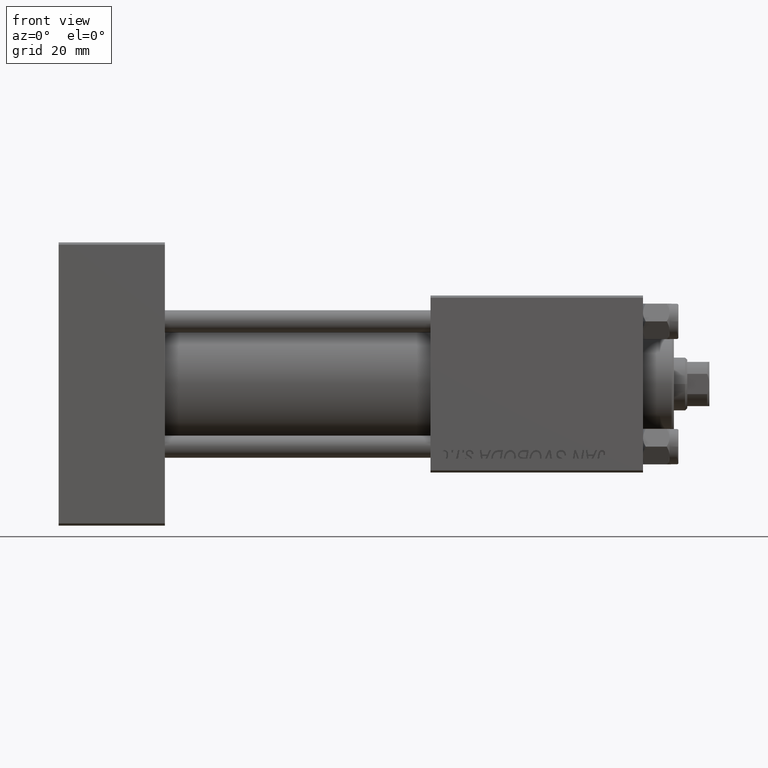
[diagram: clean part render]
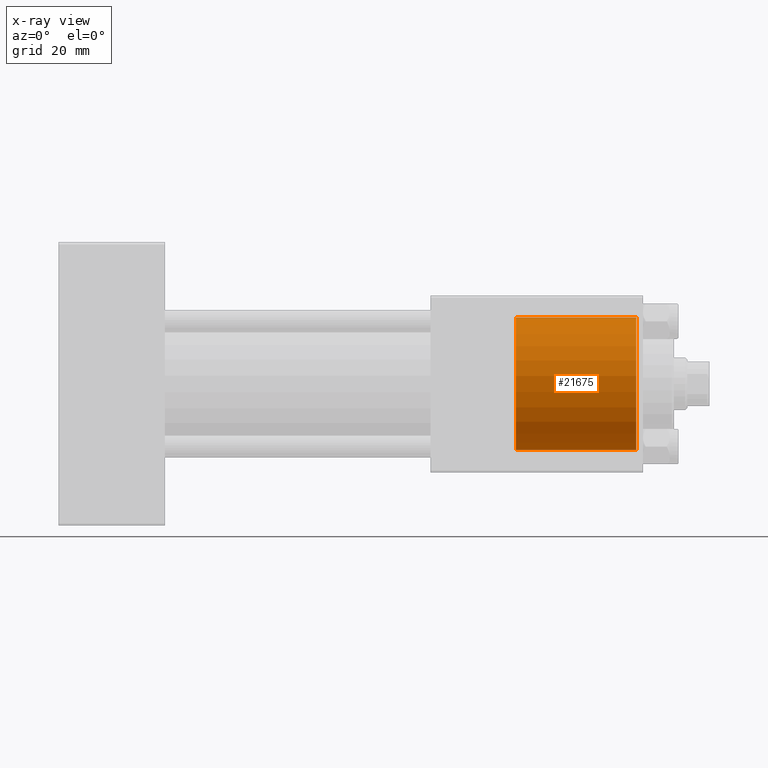
[diagram: x-ray — body ghosted, one internal face saturated and labeled with its STEP entity id]
A machine part, front view, then the same camera in x-ray: the body is ghosted and one INTERNAL B-rep face — a face not visible from any outside direction — is saturated and labeled: STEP entity #21675.
In plain terms, the highlighted cylindrical surface (partial cylindrical patch) has radius 15 mm, axis along (1, 0, 0).
Its self-contained STEP definition (entity closure, byte-faithful):
#1258 = EDGE_CURVE ( 'NONE', #20790, #20008, #45565, .T. ) ;
#2602 = CARTESIAN_POINT ( 'NONE',  ( 103.2999999999999972, 0.000000000000000000, 0.000000000000000000 ) ) ;
#2983 = CARTESIAN_POINT ( 'NONE',  ( 103.2999999999999972, 0.000000000000000000, -15.00000000000000000 ) ) ;
#3182 = DIRECTION ( 'NONE',  ( 0.000000000000000000, 0.000000000000000000, 1.000000000000000000 ) ) ;
#4115 = CIRCLE ( 'NONE', #34766, 15.00000000000000000 ) ;
#5496 = EDGE_LOOP ( 'NONE', ( #31537, #21727, #33323, #37663 ) ) ;
#6132 = CARTESIAN_POINT ( 'NONE',  ( 103.2999999999999972, 1.836970198721029589E-15, 15.00000000000000000 ) ) ;
#15094 = CARTESIAN_POINT ( 'NONE',  ( 103.2999999999999972, 0.000000000000000000, 0.000000000000000000 ) ) ;
#17274 = DIRECTION ( 'NONE',  ( 0.000000000000000000, 0.000000000000000000, -1.000000000000000000 ) ) ;
#19416 = EDGE_CURVE ( 'NONE', #23996, #42383, #4115, .T. ) ;
#20008 = VERTEX_POINT ( 'NONE', #27302 ) ;
#20790 = VERTEX_POINT ( 'NONE', #6132 ) ;
#21675 = ADVANCED_FACE ( 'NONE', ( #49679 ), #23421, .F. ) ;
#21727 = ORIENTED_EDGE ( 'NONE', *, *, #46131, .T. ) ;
#23421 = CYLINDRICAL_SURFACE ( 'NONE', #30803, 15.00000000000000000 ) ;
#23569 = VECTOR ( 'NONE', #46178, 1000.000000000000000 ) ;
#23805 = AXIS2_PLACEMENT_3D ( 'NONE', #2602, #48305, #17274 ) ;
#23996 = VERTEX_POINT ( 'NONE', #35991 ) ;
#25361 = EDGE_CURVE ( 'NONE', #20008, #42383, #37575, .T. ) ;
#26175 = CARTESIAN_POINT ( 'NONE',  ( 130.4999999999999716, 0.000000000000000000, 0.000000000000000000 ) ) ;
#26982 = DIRECTION ( 'NONE',  ( 1.000000000000000000, -0.000000000000000000, -0.000000000000000000 ) ) ;
#27302 = CARTESIAN_POINT ( 'NONE',  ( 103.2999999999999972, 0.000000000000000000, -15.00000000000000000 ) ) ;
#30798 = LINE ( 'NONE', #34830, #23569 ) ;
#30803 = AXIS2_PLACEMENT_3D ( 'NONE', #15094, #26982, #38816 ) ;
#31204 = DIRECTION ( 'NONE',  ( 1.000000000000000000, -0.000000000000000000, -0.000000000000000000 ) ) ;
#31537 = ORIENTED_EDGE ( 'NONE', *, *, #1258, .F. ) ;
#33323 = ORIENTED_EDGE ( 'NONE', *, *, #19416, .T. ) ;
#34766 = AXIS2_PLACEMENT_3D ( 'NONE', #26175, #46341, #3182 ) ;
#34830 = CARTESIAN_POINT ( 'NONE',  ( 103.2999999999999972, 1.836970198721029589E-15, 15.00000000000000000 ) ) ;
#35616 = CARTESIAN_POINT ( 'NONE',  ( 130.4999999999999716, 0.000000000000000000, -15.00000000000000000 ) ) ;
#35991 = CARTESIAN_POINT ( 'NONE',  ( 130.4999999999999716, 1.836970198721029589E-15, 15.00000000000000000 ) ) ;
#37575 = LINE ( 'NONE', #2983, #46210 ) ;
#37663 = ORIENTED_EDGE ( 'NONE', *, *, #25361, .F. ) ;
#38816 = DIRECTION ( 'NONE',  ( 0.000000000000000000, 0.000000000000000000, -1.000000000000000000 ) ) ;
#42383 = VERTEX_POINT ( 'NONE', #35616 ) ;
#45565 = CIRCLE ( 'NONE', #23805, 15.00000000000000000 ) ;
#46131 = EDGE_CURVE ( 'NONE', #20790, #23996, #30798, .T. ) ;
#46178 = DIRECTION ( 'NONE',  ( 1.000000000000000000, -0.000000000000000000, -0.000000000000000000 ) ) ;
#46210 = VECTOR ( 'NONE', #31204, 1000.000000000000000 ) ;
#46341 = DIRECTION ( 'NONE',  ( 1.000000000000000000, 0.000000000000000000, 0.000000000000000000 ) ) ;
#48305 = DIRECTION ( 'NONE',  ( 1.000000000000000000, 0.000000000000000000, 0.000000000000000000 ) ) ;
#49679 = FACE_OUTER_BOUND ( 'NONE', #5496, .T. ) ;